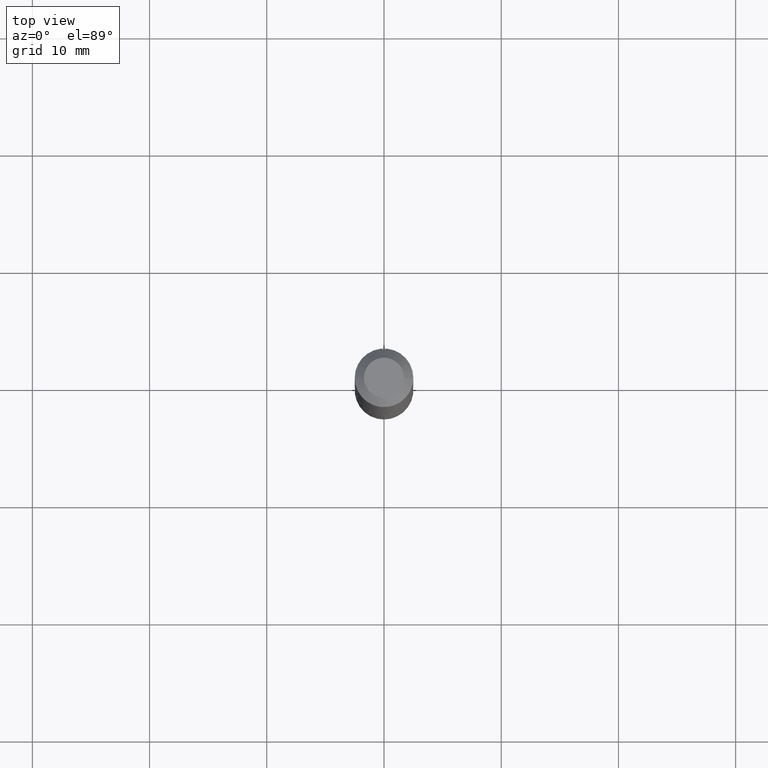
[diagram: clean part render]
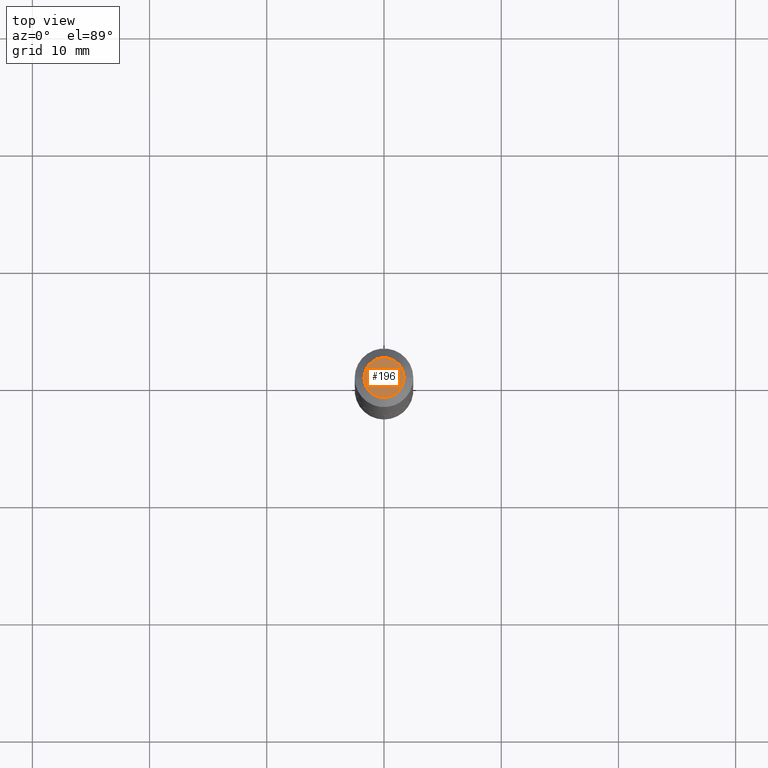
[diagram: same view with one face highlighted and labeled with its STEP entity id]
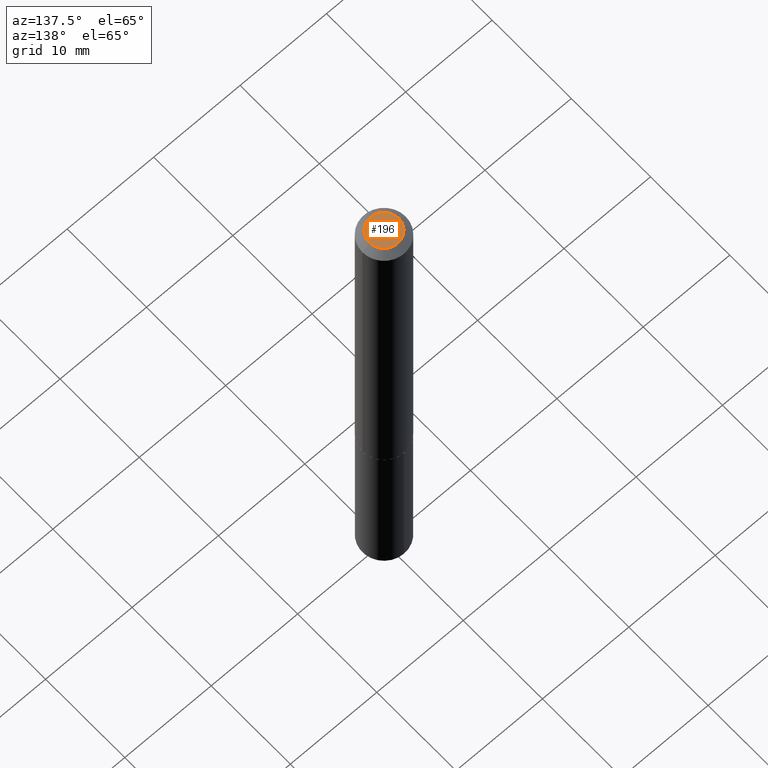
[diagram: same view with one face highlighted and labeled with its STEP entity id]
A machine part, top view. The second image highlights one B-rep face of the part: STEP entity #196.
A second angle (auxiliary view) of the same face is appended — the face is thin or edge-on in the first view.
In plain terms, the highlighted planar face has unit normal (0, -0, -1).
Its self-contained STEP definition (entity closure, byte-faithful):
#14 = DIRECTION ( 'NONE',  ( 1.000000000000000000, -6.982962677686266711E-15, 4.876163892769828153E-29 ) ) ;
#20 = VERTEX_POINT ( 'NONE', #336 ) ;
#27 = ORIENTED_EDGE ( 'NONE', *, *, #122, .T. ) ;
#67 = VERTEX_POINT ( 'NONE', #129 ) ;
#68 = EDGE_LOOP ( 'NONE', ( #27, #188 ) ) ;
#72 = CARTESIAN_POINT ( 'NONE',  ( -2.949913012720686933E-47, 4.211693974208519599E-33, 1.206277097160142896E-18 ) ) ;
#78 = DIRECTION ( 'NONE',  ( -2.445468806185136597E-29, 3.491481338843145583E-15, 1.000000000000000000 ) ) ;
#87 = PLANE ( 'NONE',  #328 ) ;
#90 = DIRECTION ( 'NONE',  ( 2.438088387897960049E-29, -3.491481338843145188E-15, -1.000000000000000000 ) ) ;
#122 = EDGE_CURVE ( 'NONE', #67, #20, #131, .T. ) ;
#129 = CARTESIAN_POINT ( 'NONE',  ( -0.06719999999999999585, 5.238094878599404868E-16, 1.206277097156670637E-18 ) ) ;
#131 = CIRCLE ( 'NONE', #247, 0.06719999999999999585 ) ;
#140 = CARTESIAN_POINT ( 'NONE',  ( -1.474956506360343467E-47, 2.105846987104259800E-33, 6.031385485800714479E-19 ) ) ;
#164 = DIRECTION ( 'NONE',  ( -2.445468806185136597E-29, 3.491481338843145583E-15, 1.000000000000000000 ) ) ;
#185 = AXIS2_PLACEMENT_3D ( 'NONE', #351, #78, #315 ) ;
#188 = ORIENTED_EDGE ( 'NONE', *, *, #346, .T. ) ;
#196 = ADVANCED_FACE ( 'NONE', ( #201 ), #87, .F. ) ;
#201 = FACE_OUTER_BOUND ( 'NONE', #68, .T. ) ;
#247 = AXIS2_PLACEMENT_3D ( 'NONE', #72, #164, #14 ) ;
#315 = DIRECTION ( 'NONE',  ( 1.000000000000000000, -6.982962677686266711E-15, 4.876163892769828153E-29 ) ) ;
#320 = CIRCLE ( 'NONE', #185, 0.06719999999999999585 ) ;
#328 = AXIS2_PLACEMENT_3D ( 'NONE', #140, #90, #388 ) ;
#336 = CARTESIAN_POINT ( 'NONE',  ( 0.06719999999999999585, -6.227751425848515766E-16, 1.206277097163960667E-18 ) ) ;
#346 = EDGE_CURVE ( 'NONE', #20, #67, #320, .T. ) ;
#351 = CARTESIAN_POINT ( 'NONE',  ( -2.949913012720686933E-47, 4.211693974208519599E-33, 1.206277097160142896E-18 ) ) ;
#388 = DIRECTION ( 'NONE',  ( -1.000000000000000000, 6.982962677686265922E-15, -4.876176775795935793E-29 ) ) ;